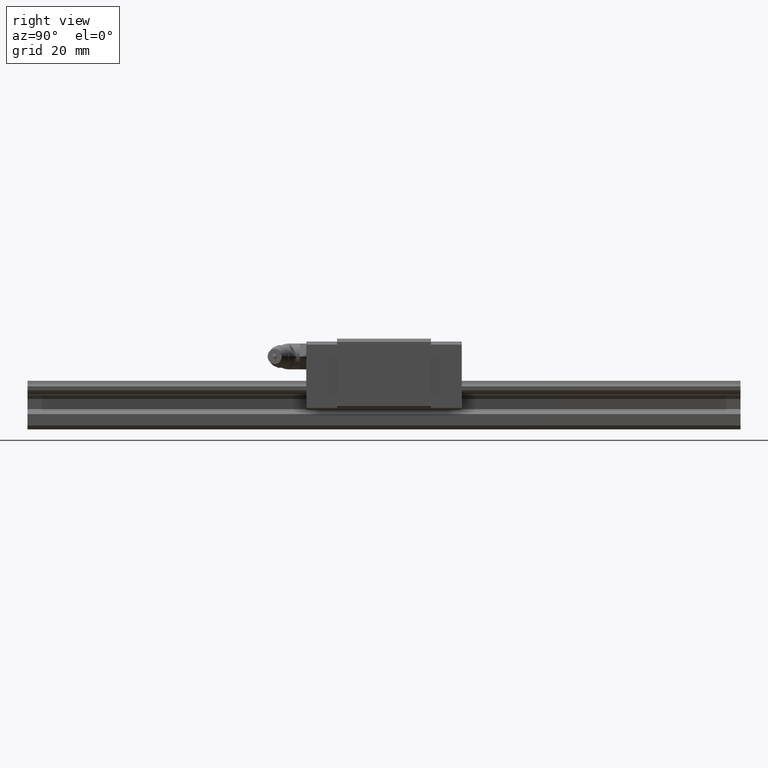
[diagram: clean part render]
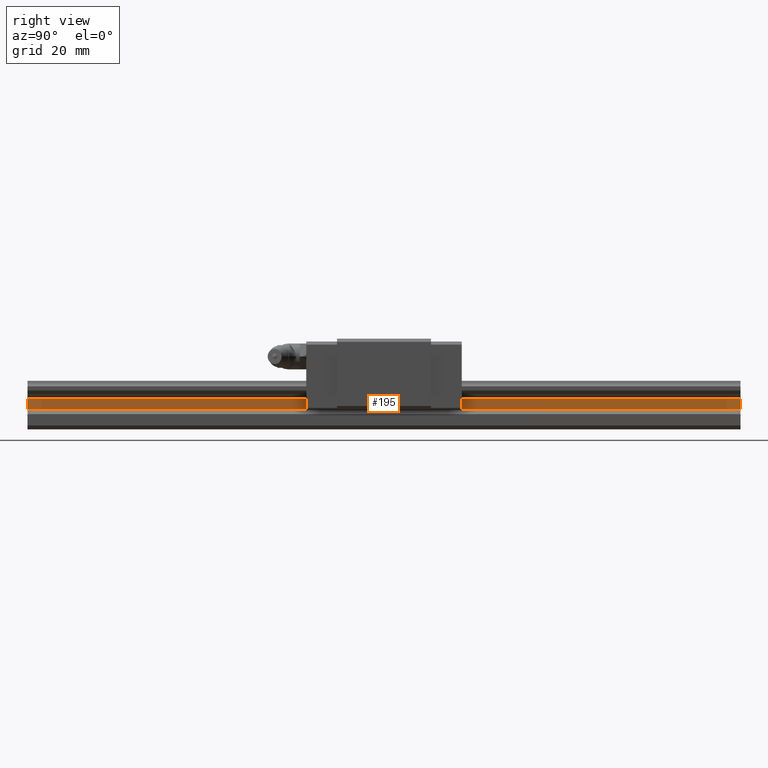
[diagram: same view with one face highlighted and labeled with its STEP entity id]
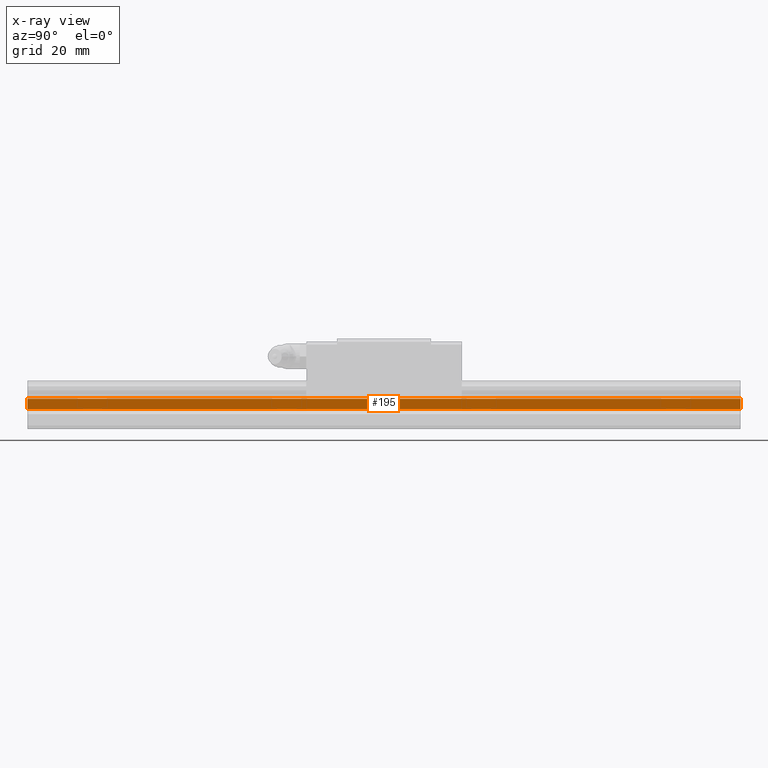
[diagram: x-ray of the same camera — body ghosted, the highlighted face saturated]
A machine part, right view. The second image highlights one B-rep face of the part: STEP entity #195.
The next image is the same camera in x-ray: the body ghosted, the highlighted face saturated — about 0% of this face is hidden behind the body in this view.
In plain terms, the highlighted planar face has unit normal (-1, 0, 0).
Its self-contained STEP definition (entity closure, byte-faithful):
#195=ADVANCED_FACE('',(#404),#405,.F.);
#404=FACE_OUTER_BOUND('',#790,.T.);
#405=PLANE('',#791);
#790=EDGE_LOOP('',(#1416,#1417,#1418,#1419));
#791=AXIS2_PLACEMENT_3D('',#1420,#1421,#1422);
#1416=ORIENTED_EDGE('',*,*,#2782,.T.);
#1417=ORIENTED_EDGE('',*,*,#2829,.F.);
#1418=ORIENTED_EDGE('',*,*,#2832,.F.);
#1419=ORIENTED_EDGE('',*,*,#2811,.F.);
#1420=CARTESIAN_POINT('',(7.3,110.0,6.236204996));
#1421=DIRECTION('',(-1.0,0.0,0.0));
#1422=DIRECTION('',(0.0,0.0,1.0));
#2782=EDGE_CURVE('',#3329,#3327,#3330,.T.);
#2811=EDGE_CURVE('',#3329,#3378,#3379,.T.);
#2829=EDGE_CURVE('',#3403,#3327,#3405,.T.);
#2832=EDGE_CURVE('',#3378,#3403,#3408,.T.);
#3327=VERTEX_POINT('',#4164);
#3329=VERTEX_POINT('',#4167);
#3330=LINE('',#4168,#4169);
#3378=VERTEX_POINT('',#4232);
#3379=LINE('',#4233,#4234);
#3403=VERTEX_POINT('',#4270);
#3405=LINE('',#4273,#4274);
#3408=LINE('',#4277,#4278);
#4164=CARTESIAN_POINT('',(7.3,-110.0,5.6588547268));
#4167=CARTESIAN_POINT('',(7.3,-110.0,8.7960602242));
#4168=CARTESIAN_POINT('',(7.3,-110.0,6.236204996));
#4169=VECTOR('',#5439,1000.0);
#4232=CARTESIAN_POINT('',(7.3,110.0,8.7960602242));
#4233=CARTESIAN_POINT('',(7.3,110.0,8.7960602242));
#4234=VECTOR('',#5494,1000.0);
#4270=CARTESIAN_POINT('',(7.3,110.0,5.6588547268));
#4273=CARTESIAN_POINT('',(7.3,110.0,5.6588547268));
#4274=VECTOR('',#5520,1000.0);
#4277=CARTESIAN_POINT('',(7.3,110.0,6.236204996));
#4278=VECTOR('',#5527,1000.0);
#5439=DIRECTION('',(0.0,0.0,-1.0));
#5494=DIRECTION('',(0.0,1.0,0.0));
#5520=DIRECTION('',(0.0,-1.0,0.0));
#5527=DIRECTION('',(0.0,0.0,-1.0));